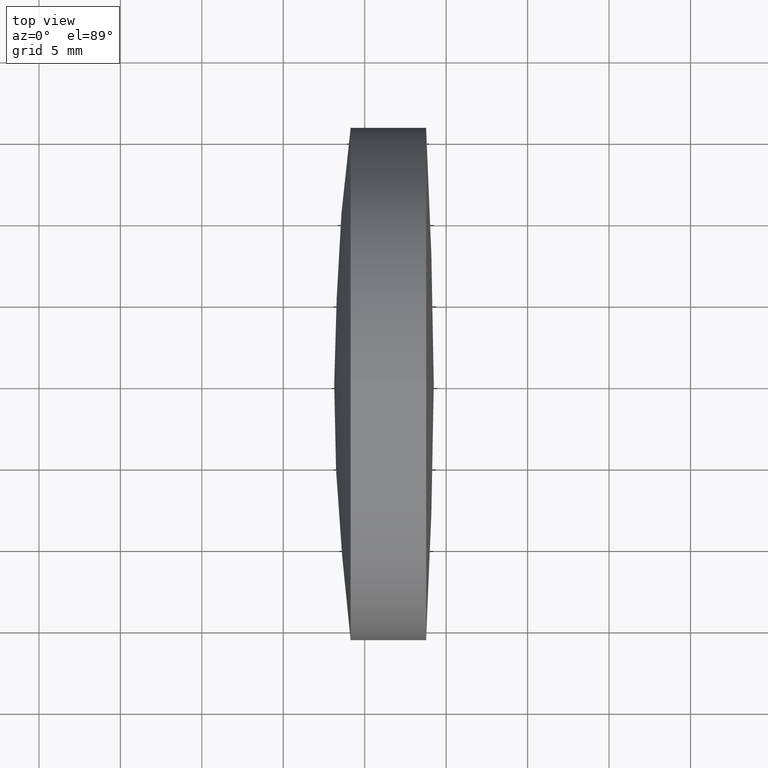
[diagram: clean part render]
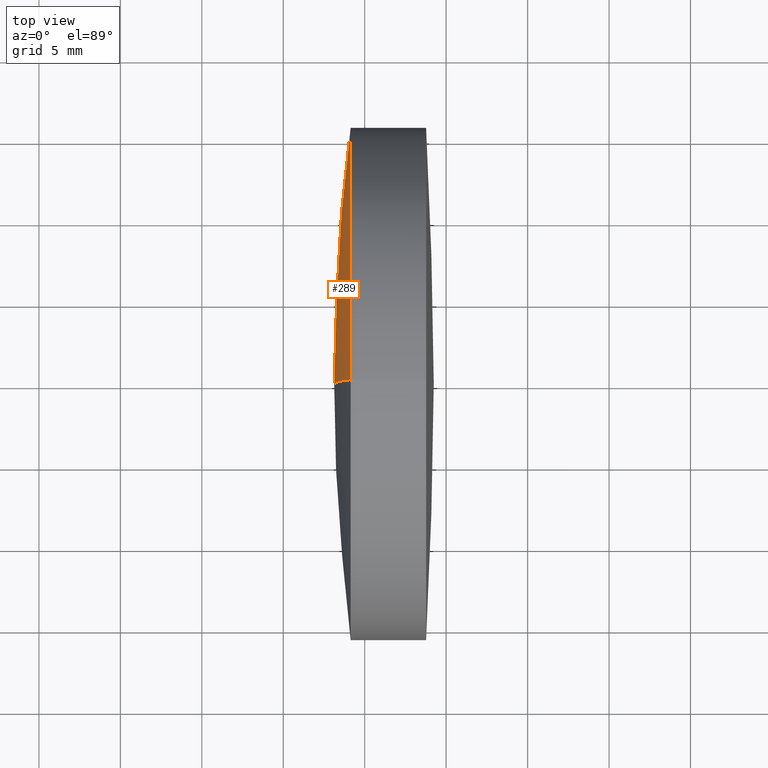
[diagram: same view with one face highlighted and labeled with its STEP entity id]
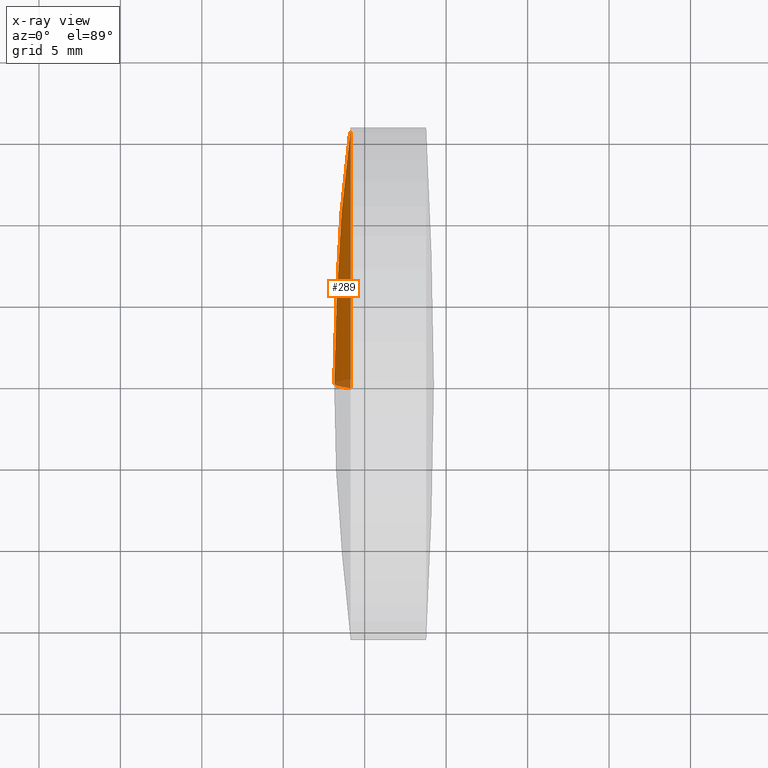
[diagram: x-ray of the same camera — body ghosted, the highlighted face saturated]
A machine part, top view. The second image highlights one B-rep face of the part: STEP entity #289.
The next image is the same camera in x-ray: the body ghosted, the highlighted face saturated — about 3% of this face is hidden behind the body in this view.
In plain terms, the highlighted spherical surface has radius 123.689 mm.
Its self-contained STEP definition (entity closure, byte-faithful):
#2 = VERTEX_POINT ( 'NONE', #147 ) ;
#14 = DIRECTION ( 'NONE',  ( -1.000000000000000000, -0.0000000000000000000, -0.0000000000000000000 ) ) ;
#46 = CIRCLE ( 'NONE', #276, 123.6890000000000100 ) ;
#69 = EDGE_CURVE ( 'NONE', #2, #328, #46, .T. ) ;
#87 = VERTEX_POINT ( 'NONE', #140 ) ;
#96 = ORIENTED_EDGE ( 'NONE', *, *, #320, .T. ) ;
#105 = CARTESIAN_POINT ( 'NONE',  ( 381.8182281870269900, 0.0000000000000000000, 1.385258890006694100E-016 ) ) ;
#110 = DIRECTION ( 'NONE',  ( 0.0000000000000000000, -1.000000000000000000, -1.224646799147353200E-016 ) ) ;
#120 = DIRECTION ( 'NONE',  ( 0.0000000000000000000, 0.0000000000000000000, 1.000000000000000000 ) ) ;
#121 = AXIS2_PLACEMENT_3D ( 'NONE', #206, #14, #178 ) ;
#140 = CARTESIAN_POINT ( 'NONE',  ( 259.1360932977123100, -1.928818708657084900E-015, 15.75000000000002800 ) ) ;
#147 = CARTESIAN_POINT ( 'NONE',  ( 259.1360932977123100, 0.0000000000000000000, -15.75000000000002800 ) ) ;
#161 = AXIS2_PLACEMENT_3D ( 'NONE', #173, #110, #334 ) ;
#164 = ORIENTED_EDGE ( 'NONE', *, *, #69, .T. ) ;
#167 = CARTESIAN_POINT ( 'NONE',  ( 381.8182281870269900, 0.0000000000000000000, 1.385258890006694100E-016 ) ) ;
#173 = CARTESIAN_POINT ( 'NONE',  ( 381.8182281870269900, 0.0000000000000000000, 1.385258890006694100E-016 ) ) ;
#178 = DIRECTION ( 'NONE',  ( 0.0000000000000000000, 0.0000000000000000000, 1.000000000000000000 ) ) ;
#206 = CARTESIAN_POINT ( 'NONE',  ( 259.1360932977123100, 0.0000000000000000000, 0.0000000000000000000 ) ) ;
#207 = EDGE_LOOP ( 'NONE', ( #342, #96, #164 ) ) ;
#211 = DIRECTION ( 'NONE',  ( -0.0000000000000000000, -1.000000000000000000, -0.0000000000000000000 ) ) ;
#240 = CIRCLE ( 'NONE', #161, 123.6890000000000100 ) ;
#241 = EDGE_CURVE ( 'NONE', #87, #328, #240, .T. ) ;
#246 = CARTESIAN_POINT ( 'NONE',  ( 258.1292281870269700, 0.0000000000000000000, -7.435241007986179600E-015 ) ) ;
#260 = AXIS2_PLACEMENT_3D ( 'NONE', #105, #211, #341 ) ;
#269 = CIRCLE ( 'NONE', #121, 15.75000000000000000 ) ;
#276 = AXIS2_PLACEMENT_3D ( 'NONE', #167, #292, #120 ) ;
#282 = FACE_OUTER_BOUND ( 'NONE', #207, .T. ) ;
#289 = ADVANCED_FACE ( 'NONE', ( #282 ), #344, .T. ) ;
#292 = DIRECTION ( 'NONE',  ( 0.0000000000000000000, 1.000000000000000000, -0.0000000000000000000 ) ) ;
#320 = EDGE_CURVE ( 'NONE', #87, #2, #269, .T. ) ;
#328 = VERTEX_POINT ( 'NONE', #246 ) ;
#334 = DIRECTION ( 'NONE',  ( 0.0000000000000000000, 1.224646799147353200E-016, -1.000000000000000000 ) ) ;
#341 = DIRECTION ( 'NONE',  ( 0.0000000000000000000, 0.0000000000000000000, -1.000000000000000000 ) ) ;
#342 = ORIENTED_EDGE ( 'NONE', *, *, #241, .F. ) ;
#344 = SPHERICAL_SURFACE ( 'NONE', #260, 123.6890000000000100 ) ;